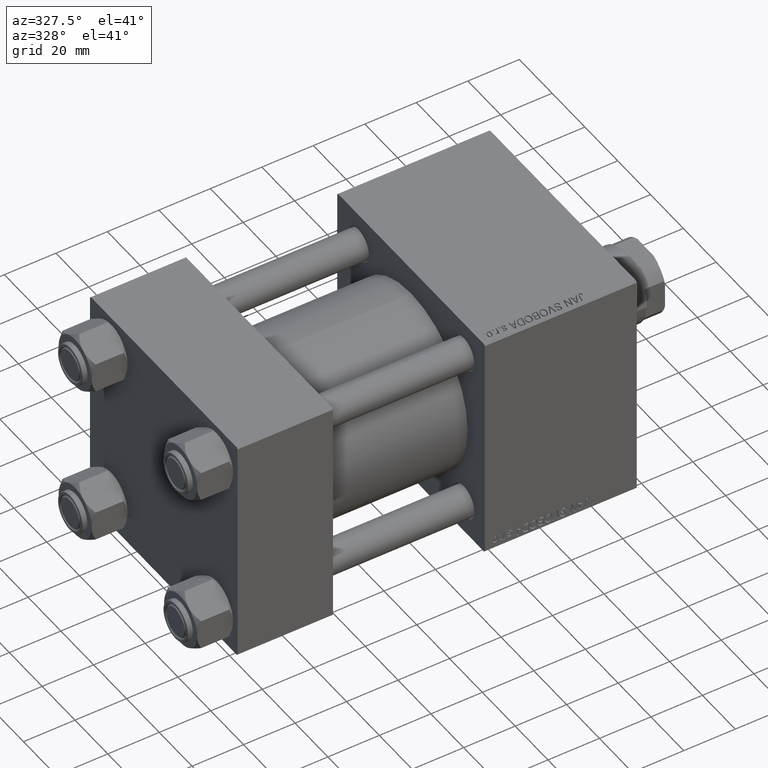
[diagram: clean part render]
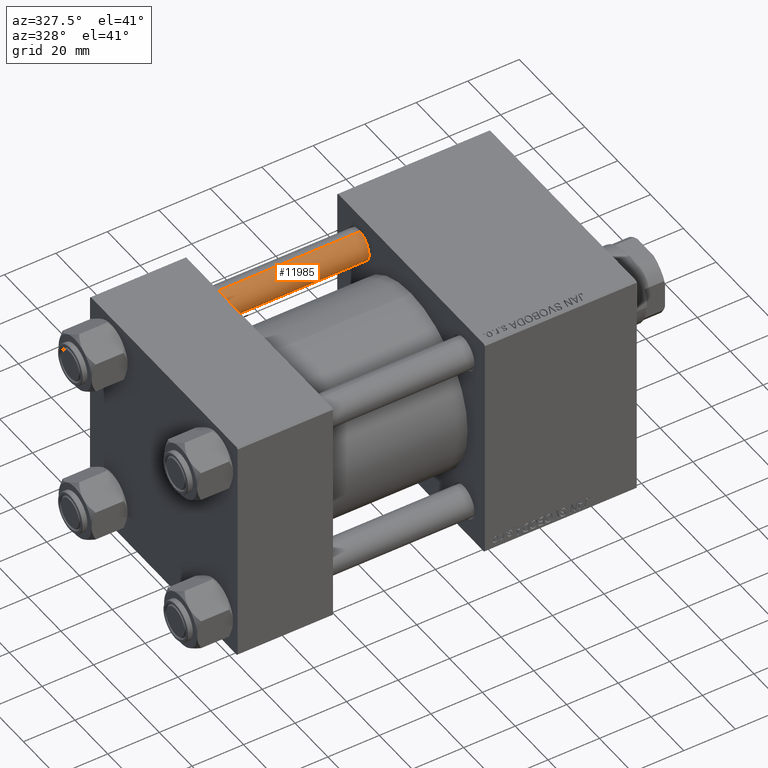
[diagram: same view with one face highlighted and labeled with its STEP entity id]
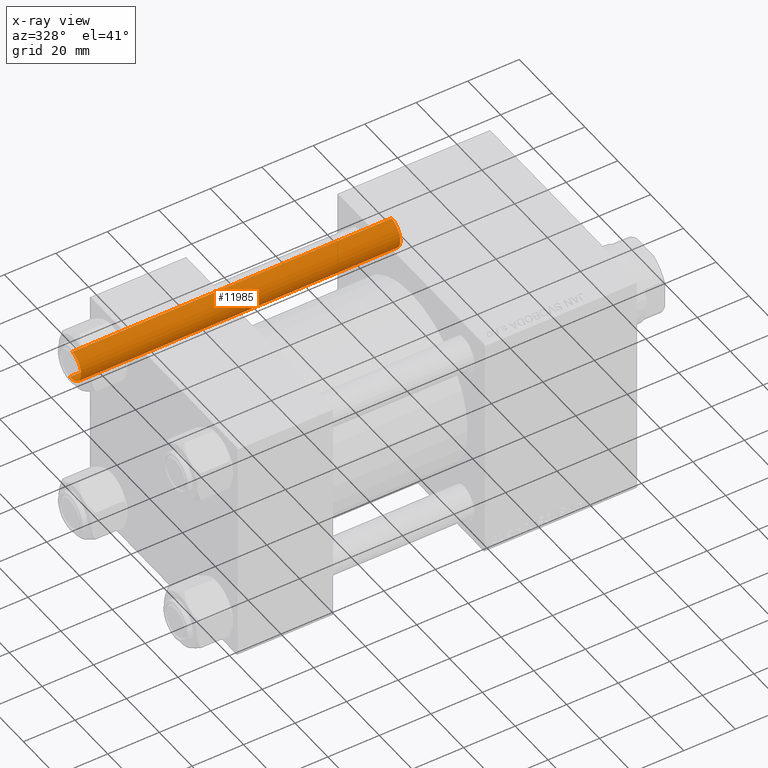
[diagram: x-ray of the same camera — body ghosted, the highlighted face saturated]
A machine part, auxiliary view. The second image highlights one B-rep face of the part: STEP entity #11985.
The next image is the same camera in x-ray: the body ghosted, the highlighted face saturated — about 0% of this face is hidden behind the body in this view.
In plain terms, the highlighted cylindrical surface (edge-blend (fillet) strip) has radius 6 mm, axis along (-1, 0, 0).
Its self-contained STEP definition (entity closure, byte-faithful):
#62 = ORIENTED_EDGE ( 'NONE', *, *, #40639, .T. ) ;
#641 = DIRECTION ( 'NONE',  ( -0.000000000000000000, -0.000000000000000000, 1.000000000000000000 ) ) ;
#980 = LINE ( 'NONE', #16526, #39777 ) ;
#1654 = AXIS2_PLACEMENT_3D ( 'NONE', #12106, #641, #15940 ) ;
#3687 = DIRECTION ( 'NONE',  ( -0.000000000000000000, -0.000000000000000000, -1.000000000000000000 ) ) ;
#7250 = LINE ( 'NONE', #30708, #23746 ) ;
#9429 = CARTESIAN_POINT ( 'NONE',  ( 0.000000000000000000, 0.000000000000000000, 124.5000000000000000 ) ) ;
#9431 = ORIENTED_EDGE ( 'NONE', *, *, #37920, .T. ) ;
#11884 = AXIS2_PLACEMENT_3D ( 'NONE', #39357, #20259, #20513 ) ;
#11985 = ADVANCED_FACE ( 'NONE', ( #23829 ), #12604, .T. ) ;
#12106 = CARTESIAN_POINT ( 'NONE',  ( 0.000000000000000000, 0.000000000000000000, 0.4999999999999865663 ) ) ;
#12396 = CARTESIAN_POINT ( 'NONE',  ( 6.000000000000000888, 7.347880794884120722E-16, 0.4999999999999865663 ) ) ;
#12604 = CYLINDRICAL_SURFACE ( 'NONE', #11884, 6.000000000000000888 ) ;
#12700 = DIRECTION ( 'NONE',  ( -0.000000000000000000, -0.000000000000000000, -1.000000000000000000 ) ) ;
#14031 = ORIENTED_EDGE ( 'NONE', *, *, #14236, .T. ) ;
#14236 = EDGE_CURVE ( 'NONE', #28979, #20918, #28219, .T. ) ;
#15940 = DIRECTION ( 'NONE',  ( 1.000000000000000000, 0.000000000000000000, 0.000000000000000000 ) ) ;
#16526 = CARTESIAN_POINT ( 'NONE',  ( 6.000000000000000888, 7.347880794884120722E-16, 125.0000000000000000 ) ) ;
#16540 = ORIENTED_EDGE ( 'NONE', *, *, #19492, .F. ) ;
#17120 = CIRCLE ( 'NONE', #1654, 6.000000000000000888 ) ;
#17650 = AXIS2_PLACEMENT_3D ( 'NONE', #9429, #44849, #21911 ) ;
#19492 = EDGE_CURVE ( 'NONE', #28979, #27751, #980, .T. ) ;
#20259 = DIRECTION ( 'NONE',  ( -0.000000000000000000, -0.000000000000000000, -1.000000000000000000 ) ) ;
#20513 = DIRECTION ( 'NONE',  ( -1.000000000000000000, 0.000000000000000000, 0.000000000000000000 ) ) ;
#20854 = VERTEX_POINT ( 'NONE', #26398 ) ;
#20918 = VERTEX_POINT ( 'NONE', #39337 ) ;
#21911 = DIRECTION ( 'NONE',  ( 1.000000000000000000, 0.000000000000000000, 0.000000000000000000 ) ) ;
#22229 = EDGE_LOOP ( 'NONE', ( #16540, #14031, #62, #9431 ) ) ;
#23746 = VECTOR ( 'NONE', #3687, 1000.000000000000000 ) ;
#23829 = FACE_OUTER_BOUND ( 'NONE', #22229, .T. ) ;
#26398 = CARTESIAN_POINT ( 'NONE',  ( -6.000000000000000888, 0.000000000000000000, 0.4999999999999865663 ) ) ;
#27751 = VERTEX_POINT ( 'NONE', #12396 ) ;
#28219 = CIRCLE ( 'NONE', #17650, 6.000000000000000888 ) ;
#28979 = VERTEX_POINT ( 'NONE', #31704 ) ;
#30708 = CARTESIAN_POINT ( 'NONE',  ( -6.000000000000000888, 0.000000000000000000, 125.0000000000000000 ) ) ;
#31704 = CARTESIAN_POINT ( 'NONE',  ( 6.000000000000000888, 7.347880794884120722E-16, 124.5000000000000000 ) ) ;
#37920 = EDGE_CURVE ( 'NONE', #20854, #27751, #17120, .T. ) ;
#39337 = CARTESIAN_POINT ( 'NONE',  ( -6.000000000000000888, 0.000000000000000000, 124.5000000000000000 ) ) ;
#39357 = CARTESIAN_POINT ( 'NONE',  ( 0.000000000000000000, 0.000000000000000000, 125.0000000000000000 ) ) ;
#39777 = VECTOR ( 'NONE', #12700, 1000.000000000000000 ) ;
#40639 = EDGE_CURVE ( 'NONE', #20918, #20854, #7250, .T. ) ;
#44849 = DIRECTION ( 'NONE',  ( 0.000000000000000000, 0.000000000000000000, -1.000000000000000000 ) ) ;